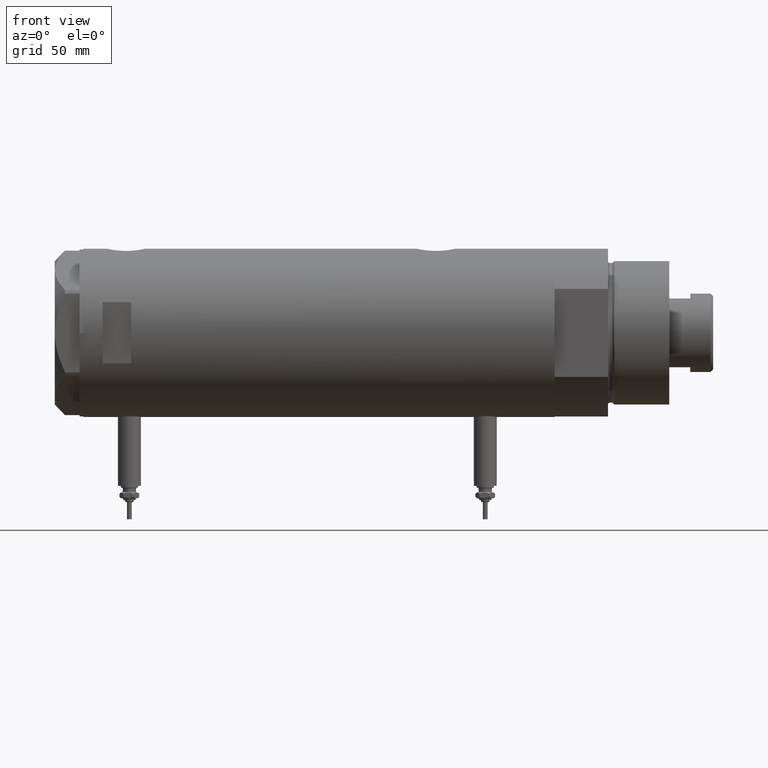
[diagram: clean part render]
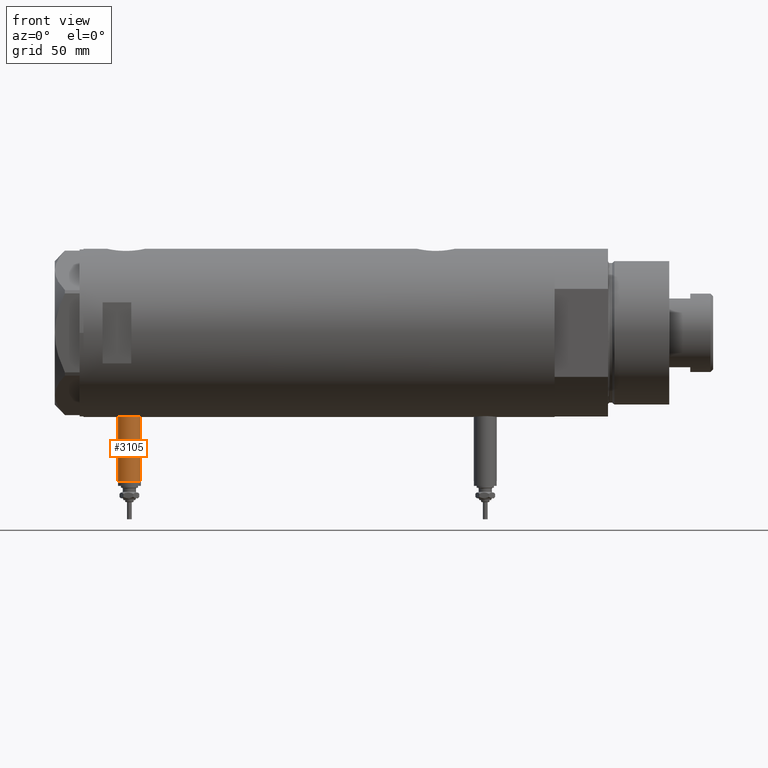
[diagram: same view with one face highlighted and labeled with its STEP entity id]
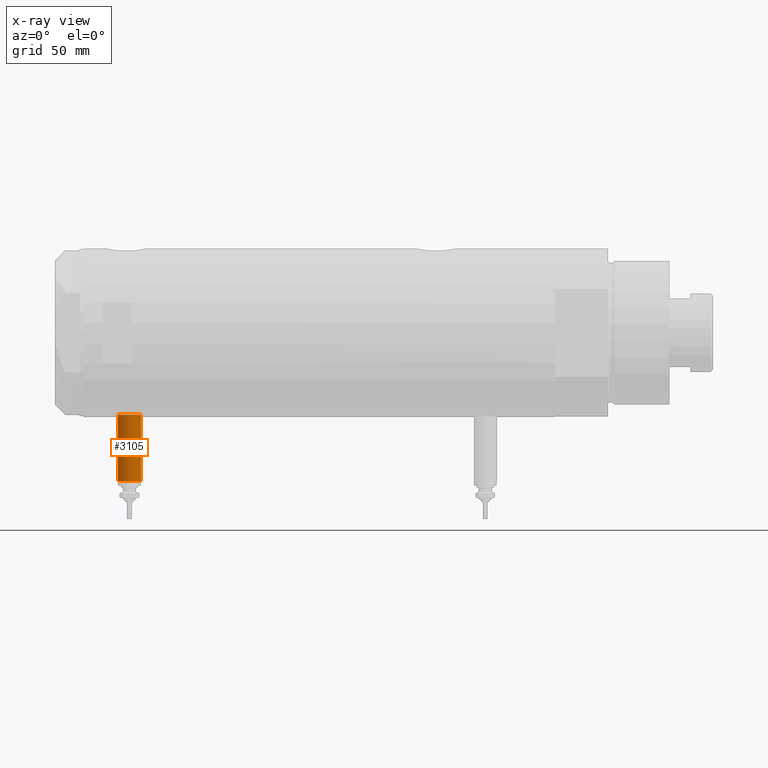
[diagram: x-ray of the same camera — body ghosted, the highlighted face saturated]
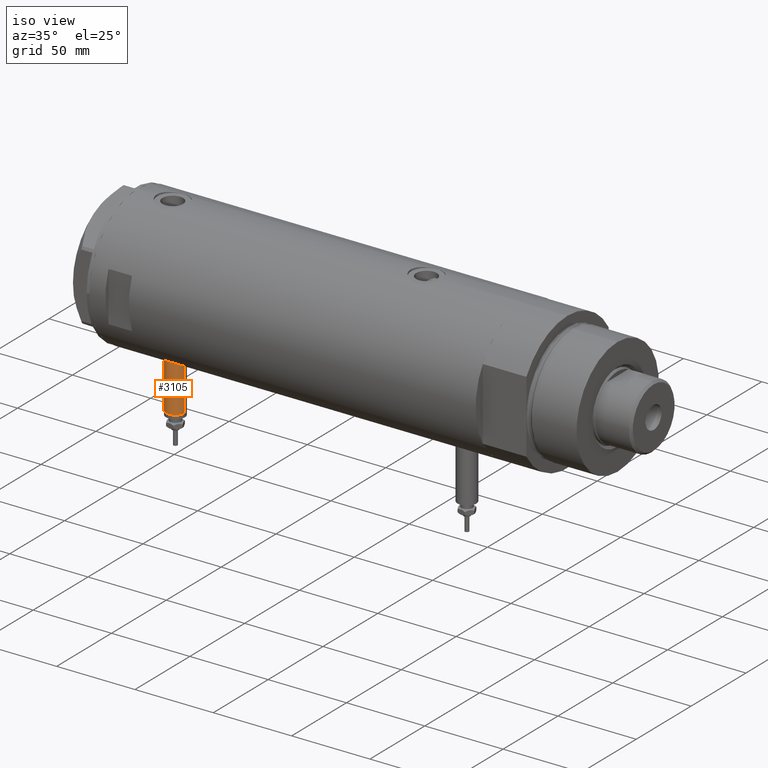
[diagram: same view with one face highlighted and labeled with its STEP entity id]
A machine part, front view. The second image highlights one B-rep face of the part: STEP entity #3105.
The next image is the same camera in x-ray: the body ghosted, the highlighted face saturated — about 0% of this face is hidden behind the body in this view.
A second angle (iso view) of the same face is appended — the face is thin or edge-on in the first view.
In plain terms, the highlighted cylindrical surface (edge-blend (fillet) strip) has radius 6 mm, axis along (0, 0, 1).
Its self-contained STEP definition (entity closure, byte-faithful):
#57 = ORIENTED_EDGE ( 'NONE', *, *, #2544, .T. ) ;
#275 = EDGE_LOOP ( 'NONE', ( #1609, #4772, #57, #1975 ) ) ;
#276 = CARTESIAN_POINT ( 'NONE',  ( -77.50000000000000000, 0.000000000000000000, 99.20000000000001705 ) ) ;
#731 = VECTOR ( 'NONE', #2928, 1000.000000000000000 ) ;
#950 = VERTEX_POINT ( 'NONE', #4774 ) ;
#1085 = CARTESIAN_POINT ( 'NONE',  ( -77.50000000000000000, 0.000000000000000000, 93.20000000000001705 ) ) ;
#1181 = VERTEX_POINT ( 'NONE', #4096 ) ;
#1186 = AXIS2_PLACEMENT_3D ( 'NONE', #5387, #1576, #4012 ) ;
#1319 = CARTESIAN_POINT ( 'NONE',  ( -77.50000000000000000, 7.347880794884101001E-16, 105.2000000000000028 ) ) ;
#1576 = DIRECTION ( 'NONE',  ( 1.000000000000000000, -0.000000000000000000, -0.000000000000000000 ) ) ;
#1609 = ORIENTED_EDGE ( 'NONE', *, *, #3691, .F. ) ;
#1647 = DIRECTION ( 'NONE',  ( 1.000000000000000000, -0.000000000000000000, -0.000000000000000000 ) ) ;
#1826 = CARTESIAN_POINT ( 'NONE',  ( -77.50000000000000000, 7.347880794884104945E-16, 105.2000000000000028 ) ) ;
#1857 = LINE ( 'NONE', #1826, #5085 ) ;
#1975 = ORIENTED_EDGE ( 'NONE', *, *, #4820, .T. ) ;
#1985 = LINE ( 'NONE', #3387, #731 ) ;
#2088 = AXIS2_PLACEMENT_3D ( 'NONE', #3192, #2819, #5049 ) ;
#2151 = CYLINDRICAL_SURFACE ( 'NONE', #1186, 5.999999999999991118 ) ;
#2544 = EDGE_CURVE ( 'NONE', #5470, #950, #1985, .T. ) ;
#2555 = AXIS2_PLACEMENT_3D ( 'NONE', #276, #4868, #4450 ) ;
#2819 = DIRECTION ( 'NONE',  ( -1.000000000000000000, 0.000000000000000000, 0.000000000000000000 ) ) ;
#2924 = EDGE_CURVE ( 'NONE', #5470, #3554, #3041, .T. ) ;
#2928 = DIRECTION ( 'NONE',  ( 1.000000000000000000, -0.000000000000000000, -0.000000000000000000 ) ) ;
#3041 = CIRCLE ( 'NONE', #2555, 5.999999999999991118 ) ;
#3105 = ADVANCED_FACE ( 'NONE', ( #3522 ), #2151, .T. ) ;
#3192 = CARTESIAN_POINT ( 'NONE',  ( -42.79999999999999716, 0.000000000000000000, 99.20000000000001705 ) ) ;
#3387 = CARTESIAN_POINT ( 'NONE',  ( -77.50000000000000000, 0.000000000000000000, 93.20000000000001705 ) ) ;
#3522 = FACE_OUTER_BOUND ( 'NONE', #275, .T. ) ;
#3554 = VERTEX_POINT ( 'NONE', #1319 ) ;
#3691 = EDGE_CURVE ( 'NONE', #3554, #1181, #1857, .T. ) ;
#4012 = DIRECTION ( 'NONE',  ( 0.000000000000000000, 0.000000000000000000, -1.000000000000000000 ) ) ;
#4096 = CARTESIAN_POINT ( 'NONE',  ( -42.79999999999999716, 7.347880794884101001E-16, 105.2000000000000028 ) ) ;
#4450 = DIRECTION ( 'NONE',  ( 0.000000000000000000, 0.000000000000000000, 1.000000000000000000 ) ) ;
#4618 = CIRCLE ( 'NONE', #2088, 5.999999999999991118 ) ;
#4772 = ORIENTED_EDGE ( 'NONE', *, *, #2924, .F. ) ;
#4774 = CARTESIAN_POINT ( 'NONE',  ( -42.79999999999999716, 0.000000000000000000, 93.20000000000001705 ) ) ;
#4820 = EDGE_CURVE ( 'NONE', #950, #1181, #4618, .T. ) ;
#4868 = DIRECTION ( 'NONE',  ( -1.000000000000000000, 0.000000000000000000, 0.000000000000000000 ) ) ;
#5049 = DIRECTION ( 'NONE',  ( 0.000000000000000000, 0.000000000000000000, 1.000000000000000000 ) ) ;
#5085 = VECTOR ( 'NONE', #1647, 1000.000000000000000 ) ;
#5387 = CARTESIAN_POINT ( 'NONE',  ( -77.50000000000000000, 0.000000000000000000, 99.20000000000001705 ) ) ;
#5470 = VERTEX_POINT ( 'NONE', #1085 ) ;